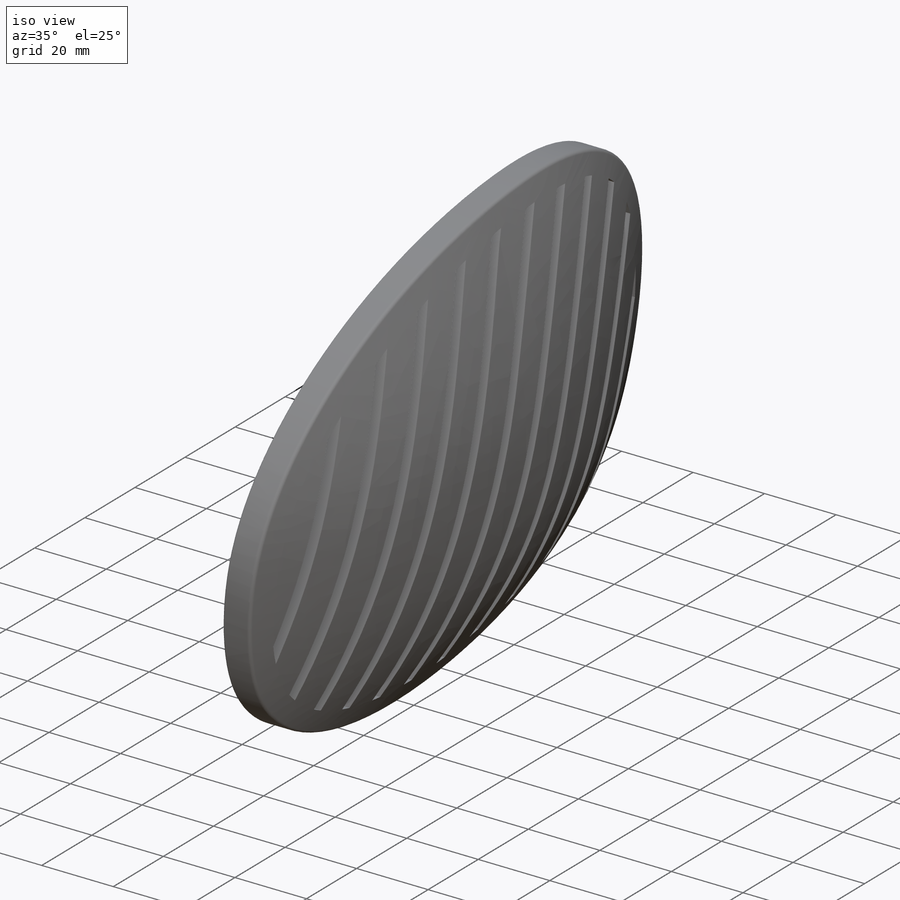
[diagram: iso view]
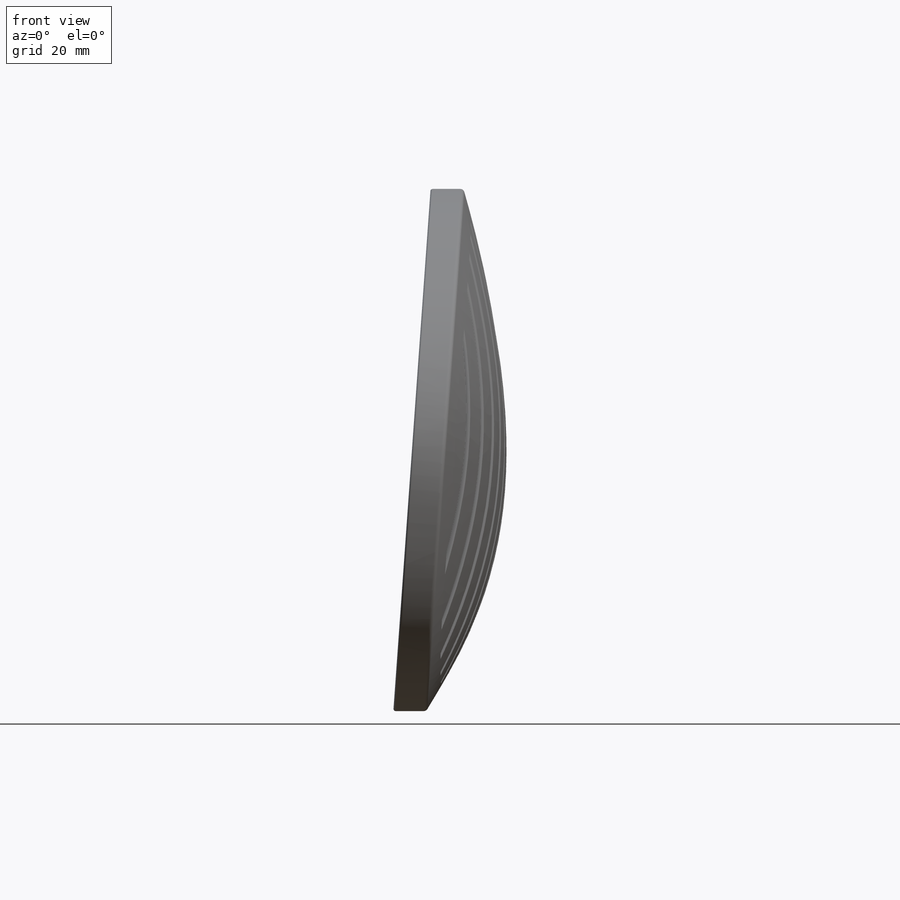
[diagram: front view]
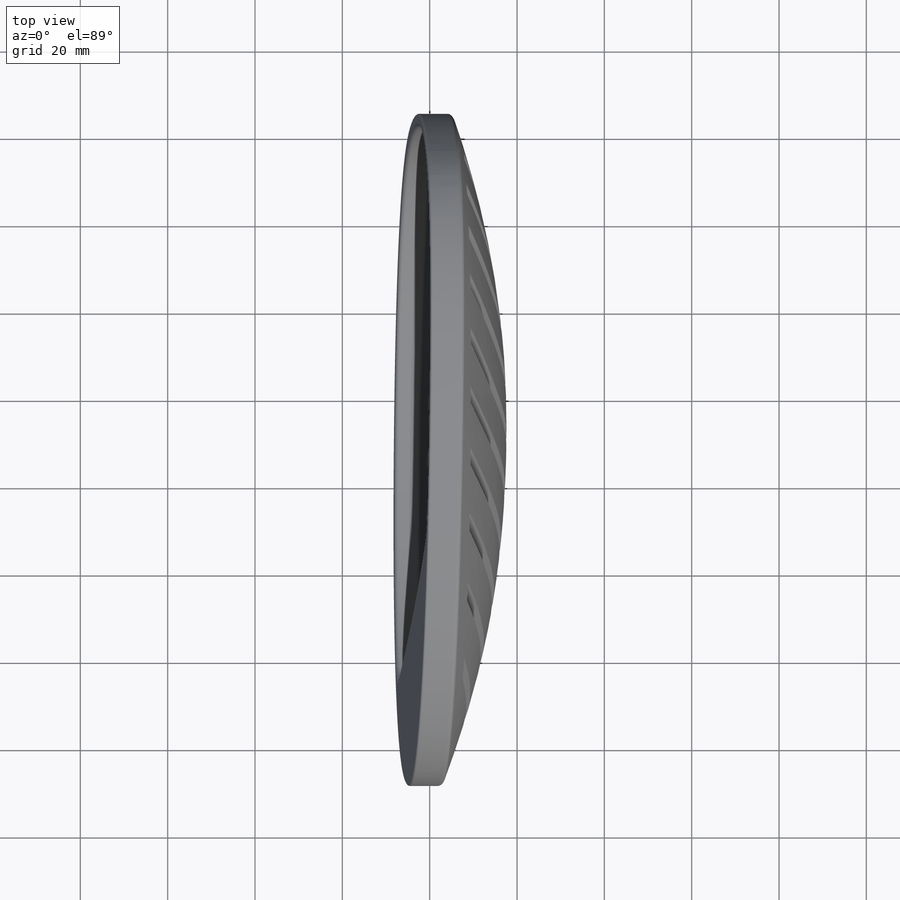
[diagram: top view]
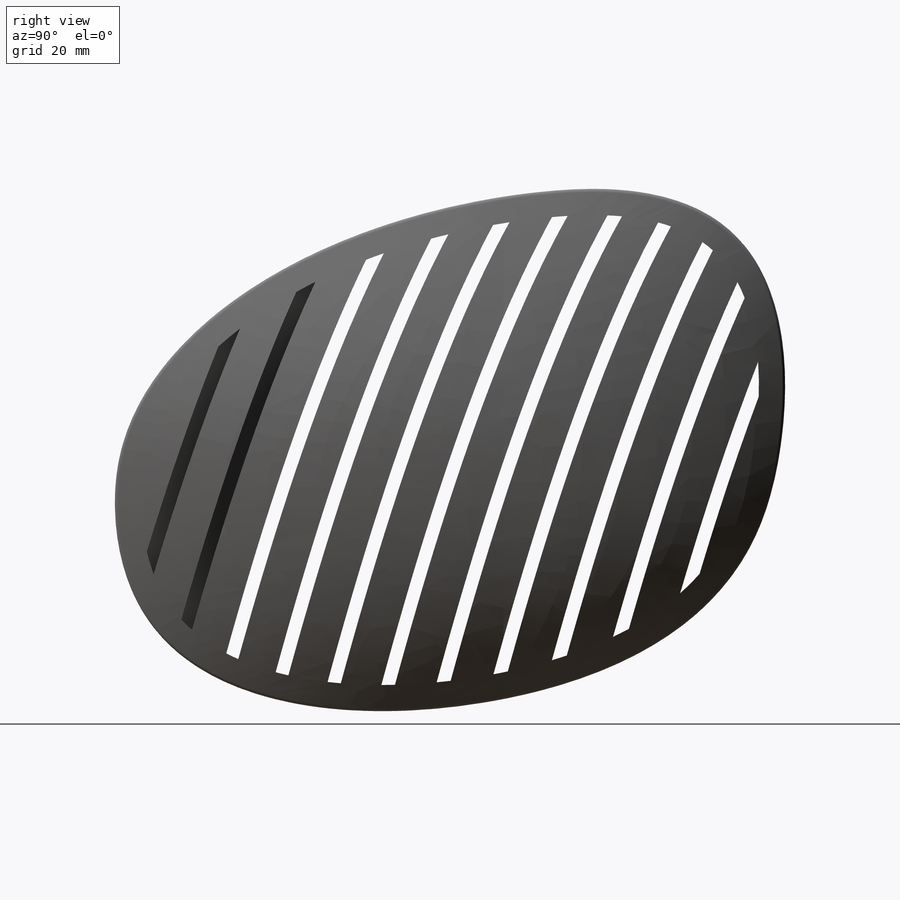
[diagram: right view]
SOLIDWORKS PART (.sldprt)
format: sldprt  version: not decoded by parser v0  size: 59,921,408 bytes
history: native  units: mm
features: sketch x29, plane x21, surface_op x7, fillet x7, extrude x4, mirror x2, move_body x2, shell x2, delete_body x2, material x1, boolean_combine x1 + 36 further entries (+30 scaffold rows collapsed; 9 parser-record rows omitted)
feature tree (153):
  scaffold x30  (default folders/planes/origin — collapsed)
  material  "ABS"
  plane  "Ebene vorne"
  parser-record x9  (decoder bookkeeping rows leaked as tree rows — omitted from the tree; the rows remain in map.json)
  sketch  "bildvorlage_gesicht verbreitert"  dims[c1.D1=~2077.482644mm c2.D1=350.0mm c2.D2=200.0mm c2.D3=175.0mm c3.D2=140.0mm c3.D3=140.0mm c4.D2=~290.354091mm]
  plane  "Ebene4"  Offset=200mm
  plane  "Ebene11"
  plane  "Ebene12"
  plane  "Ebene13"
  plane  "Ebene14"  Offset=12mm
  plane  "Ebene15"  Offset=60mm
  plane  "Ebene17"
  plane  "Ebene18"
  sketch  "Skizze60"
  sketch  "Skizze61"
  sketch  "Skizze62"
  sketch  "Skizze63"
  sketch  "Skizze65"
  sketch  "Skizze66"
  sketch  "Skizze67"
  sketch  "Skizze68"
  sketch  "Skizze70"
  mirror  "Spiegeln1"
  surface_op  "Oberfläche-Ebene2"
  "Spiegeln2"
  sketch  "3D-Skizze2"
  sketch  "Skizze74"  dims[D1=270.0mm D2=280.0mm D3=60.0mm D4=60.0mm D5=100.0mm D6=100.0mm]
  sketch  "Skizze75"  dims[c1.D1=280.0mm c1.D2=130.0mm c1.D3=130.0mm c2.D1=330.0mm c2.D4=180.0mm c2.D5=120.0mm c2.D6=120.0mm c3.D1=191.0mm c3.D2=68.0mm c3.D3=34.0mm c3.D4=222.0mm c4.D1=~0.836151mm c4.D3=~215.004935mm]
  sketch  "Skizze76"
  "3D-Skizze6"
  sketch  "Skizze79"
  sketch  "Skizze77"  dims[c1.D1=113.0mm c1.D2=50.0mm c2.D2=35.0mm c2.D3=75.0mm c3.D3=~84.822592mm]
  sketch  "Skizze78"
  "Spiegeln19"
  "3D-Skizze7"
  sketch  "Skizze85"
  sketch  "Skizze86"  dims[D1=160.0mm D2=120.0mm]
  "3D-Skizze9"
  "3D-Skizze10"
  "3D-Skizze11"
  "3D-Skizze12"
  "3D-Skizze13"
  surface_op  "Oberfläche-Ausformung3"
  "Spiegeln4"
  move_body  "Körper-Verschieben/Kopieren5"
  sketch  "Körper-Verschieben/Kopieren6"
  plane  "Ebene19"  Offset=200mm
  sketch  "Skizze89"  dims[D1=12.0mm]
  sketch  "Skizze90"  dims[D1=10.0mm]
  sketch  "Skizze91"  dims[D1=10.0mm]
  "3D-Skizze16"
  "3D-Skizze17"
  "3D-Skizze18"
  surface_op  "Oberfläche-Ausformung5"
  "3D-Skizze19"
  "3D-Skizze20"
  "3D-Skizze21"
  surface_op  "Oberfläche-Ausformung6"
  "Wanddicke auftragen5"
  "Wanddicke auftragen6"
  "3D-Skizze22"
  extrude  "Aufsatz-Linear austragen4"  [1 undecoded]
  boolean_combine  "Kombinieren13"
  "Spiegeln11"
  plane  "Ebene20"  Offset=200mm
  mirror  "Trennlinie4"
  "3D-Skizze27"
  "3D-Skizze28"  Schnitt-Linear austragen1=0mm Schnitt-Linear austragen2=0mm
  "3D-Skizze30"
  "3D-Skizze31"
  sketch  "Oberflächenausfüllung2"
  "Abspalten8"  Kombinieren14=0deg Kombinieren15=0deg
  shell  "Wandung8"  Thickness=4mm
  surface_op  "Oberfläche-Verlängern2"
  "Abspalten11"  Aufsatz-Linear austragen5=0mm Aufsatz-Linear austragen6=0mm Kombinieren25=0deg
  plane  "Ebene23"  Offset=200mm
  extrude  "Oberfläche-Offset1"  Depth=0mm
  plane  "Oberfläche-Zusammenfügen2"
  "3D-Skizze32"
  "3D-Skizze33"
  surface_op  "Oberfläche-Ausformung7"
  plane  "Oberfläche-Zusammenfügen3"
  "Wanddicke auftragen7"
  "3D-Skizze34"
  move_body  "Wandung9"
  delete_body  "Körper-Löschen1"
  delete_body  "Körper-Löschen2"
  "Spiegeln12"
  "3D-Skizze35"
  "3D-Skizze38"
  plane  "Ebene24"  Offset=170mm
  plane  "Ebene25"  Offset=180mm
  sketch  "Skizze94"  dims[c1.D2=~11.634535mm c1.D1=3.0mm c2.D2=6.0mm c2.D4=3.0 c2.D1=50.0mm]
  fillet  "Verrundung10"  Radius=1mm
  "Spiegeln13"
  extrude  "Oberfläche-Offset8"  Depth=0mm
  shell  "Oberfläche-Trimmen aufheben4"  [1 undecoded]
  surface_op  "Oberfläche-Verlängern4"
  "Wanddicke auftragen11"
  extrude  "Oberfläche-Offset9"  Depth=0mm
  "Wanddicke auftragen12"
  plane  "Ebene26"  Offset=200mm
  sketch  "Skizze93"  dims[c1.D1=12.0mm c1.D2=12.0mm c1.D3=40.0mm c1.D4=20.0mm c1.D5=240.0mm c2.D1=60.0mm]
  plane  "Ebene28"
  plane  "Ebene29"  Offset=1mm
  sketch  "Skizze96"  dims[c1.D1=5.0mm c2.D1=1.5mm]
  fillet  "Verrundung11"  Radius=0.5mm
  plane  "Ebene30"
  plane  "Ebene31"  Offset=1mm
  sketch  "Skizze97"  dims[c1.D1=5.0mm c2.D1=1.5mm]
  fillet  "Verrundung12"  Radius=0.5mm
  sketch  "Skizze98"  dims[c1.D1=1.5mm c2.D1=4.0mm]
  fillet  "Verrundung13"  Radius=15mm
  fillet  "Verrundung14"  Radius=5mm
  fillet  "Verrundung15"  Radius=1mm
  fillet  "Verrundung16"  Radius=1mm
decode coverage: 24 of 56 modeling features carry decoded parameters; 36 rows unclassified (native names shown)
note: ~ marks probable driven/reference dimensions
note: 2 parameter values undecoded
summary: [note 2] (x43 features) parser:v0:name_prior (class ref resolved by constrained assignment + name prior)
note: suppression state not decoded; provenance and decode notes live in map.json
